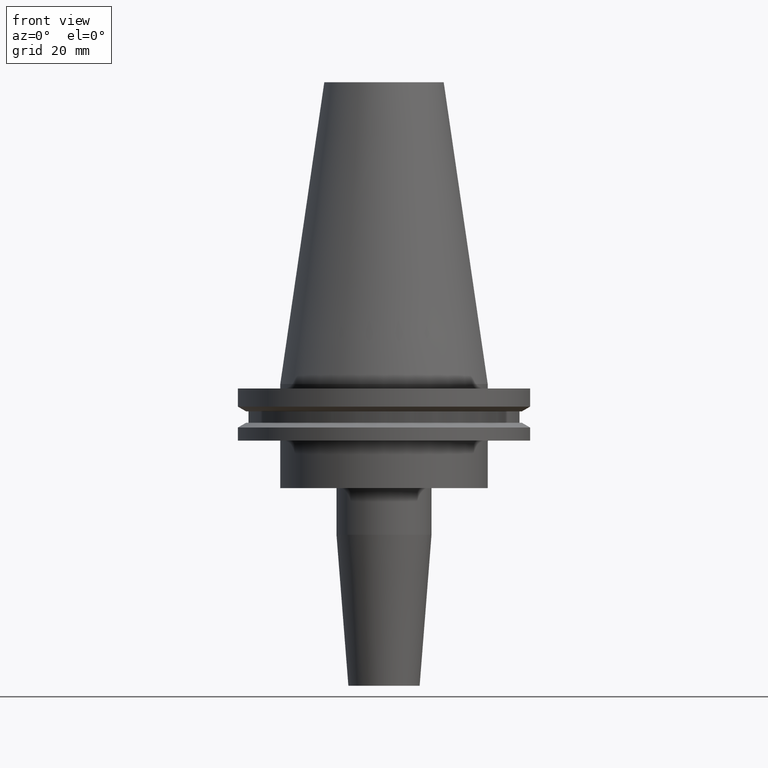
[diagram: clean part render]
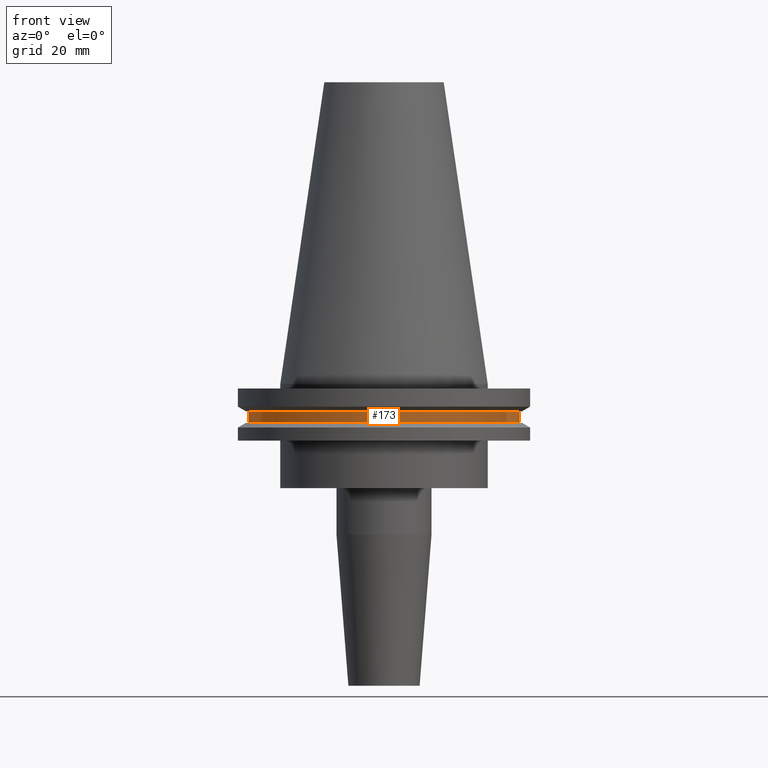
[diagram: same view with one face highlighted and labeled with its STEP entity id]
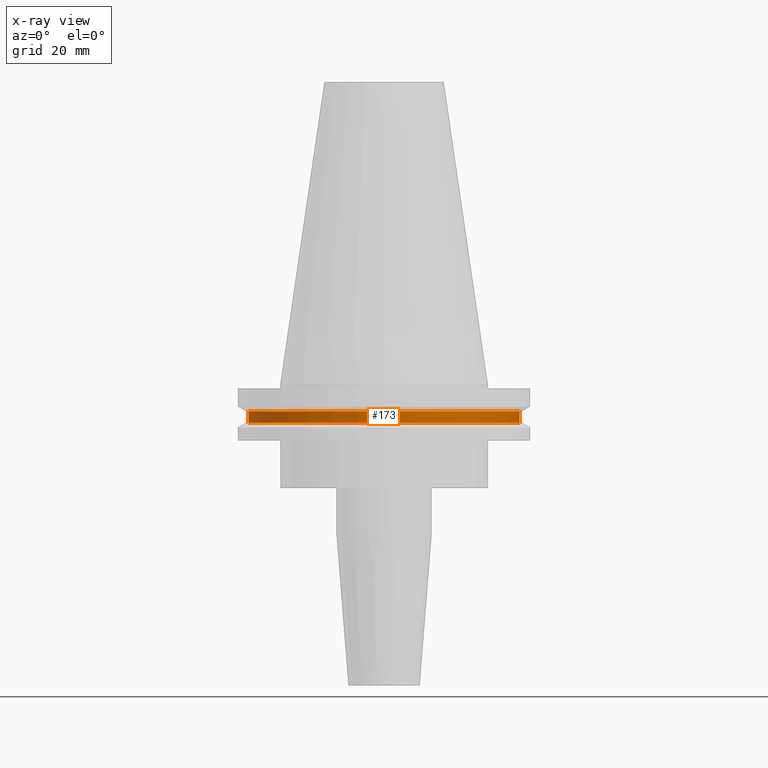
[diagram: x-ray of the same camera — body ghosted, the highlighted face saturated]
A machine part, front view. The second image highlights one B-rep face of the part: STEP entity #173.
The next image is the same camera in x-ray: the body ghosted, the highlighted face saturated — about 0% of this face is hidden behind the body in this view.
In plain terms, the highlighted cylindrical surface (partial cylindrical patch) has radius 45.645 mm, axis along (-0, -0, 1).
Its self-contained STEP definition (entity closure, byte-faithful):
#1 = CYLINDRICAL_SURFACE ( 'NONE', #52, 45.64500000000000313 ) ;
#52 = AXIS2_PLACEMENT_3D ( 'NONE', #76, #786, #342 ) ;
#61 = ORIENTED_EDGE ( 'NONE', *, *, #801, .F. ) ;
#62 = CIRCLE ( 'NONE', #694, 45.64500000000000313 ) ;
#76 = CARTESIAN_POINT ( 'NONE',  ( 0.000000000000000000, 0.000000000000000000, 101.5999999999999943 ) ) ;
#79 = LINE ( 'NONE', #697, #846 ) ;
#91 = CARTESIAN_POINT ( 'NONE',  ( 45.64500000000000313, 0.000000000000000000, -9.204999999999991189 ) ) ;
#100 = DIRECTION ( 'NONE',  ( -0.000000000000000000, -0.000000000000000000, 1.000000000000000000 ) ) ;
#103 = CARTESIAN_POINT ( 'NONE',  ( -45.64500000000000313, 5.589900314708094957E-15, -13.05499999999999794 ) ) ;
#132 = CIRCLE ( 'NONE', #182, 45.64500000000000313 ) ;
#147 = LINE ( 'NONE', #823, #373 ) ;
#173 = ADVANCED_FACE ( 'NONE', ( #673 ), #1, .T. ) ;
#182 = AXIS2_PLACEMENT_3D ( 'NONE', #221, #435, #497 ) ;
#198 = EDGE_CURVE ( 'NONE', #419, #780, #147, .T. ) ;
#221 = CARTESIAN_POINT ( 'NONE',  ( 0.000000000000000000, 0.000000000000000000, -9.204999999999991189 ) ) ;
#224 = EDGE_CURVE ( 'NONE', #741, #419, #62, .T. ) ;
#269 = ORIENTED_EDGE ( 'NONE', *, *, #198, .T. ) ;
#281 = EDGE_CURVE ( 'NONE', #285, #780, #132, .T. ) ;
#285 = VERTEX_POINT ( 'NONE', #803 ) ;
#342 = DIRECTION ( 'NONE',  ( 1.000000000000000000, 0.000000000000000000, 0.000000000000000000 ) ) ;
#347 = CARTESIAN_POINT ( 'NONE',  ( 0.000000000000000000, 0.000000000000000000, -13.05499999999999794 ) ) ;
#373 = VECTOR ( 'NONE', #754, 1000.000000000000000 ) ;
#419 = VERTEX_POINT ( 'NONE', #543 ) ;
#435 = DIRECTION ( 'NONE',  ( -0.000000000000000000, -0.000000000000000000, 1.000000000000000000 ) ) ;
#488 = DIRECTION ( 'NONE',  ( -0.000000000000000000, -0.000000000000000000, 1.000000000000000000 ) ) ;
#497 = DIRECTION ( 'NONE',  ( 1.000000000000000000, 0.000000000000000000, 0.000000000000000000 ) ) ;
#543 = CARTESIAN_POINT ( 'NONE',  ( 45.64500000000000313, 0.000000000000000000, -13.05499999999999794 ) ) ;
#616 = DIRECTION ( 'NONE',  ( 1.000000000000000000, 0.000000000000000000, 0.000000000000000000 ) ) ;
#673 = FACE_OUTER_BOUND ( 'NONE', #756, .T. ) ;
#694 = AXIS2_PLACEMENT_3D ( 'NONE', #347, #100, #616 ) ;
#697 = CARTESIAN_POINT ( 'NONE',  ( -45.64500000000000313, 5.589900314708094957E-15, 101.5999999999999943 ) ) ;
#716 = ORIENTED_EDGE ( 'NONE', *, *, #281, .F. ) ;
#741 = VERTEX_POINT ( 'NONE', #103 ) ;
#754 = DIRECTION ( 'NONE',  ( -0.000000000000000000, -0.000000000000000000, 1.000000000000000000 ) ) ;
#756 = EDGE_LOOP ( 'NONE', ( #61, #844, #269, #716 ) ) ;
#780 = VERTEX_POINT ( 'NONE', #91 ) ;
#786 = DIRECTION ( 'NONE',  ( -0.000000000000000000, -0.000000000000000000, 1.000000000000000000 ) ) ;
#801 = EDGE_CURVE ( 'NONE', #741, #285, #79, .T. ) ;
#803 = CARTESIAN_POINT ( 'NONE',  ( -45.64500000000000313, 5.589900314708094957E-15, -9.204999999999991189 ) ) ;
#823 = CARTESIAN_POINT ( 'NONE',  ( 45.64500000000000313, 0.000000000000000000, 101.5999999999999943 ) ) ;
#844 = ORIENTED_EDGE ( 'NONE', *, *, #224, .T. ) ;
#846 = VECTOR ( 'NONE', #488, 1000.000000000000000 ) ;